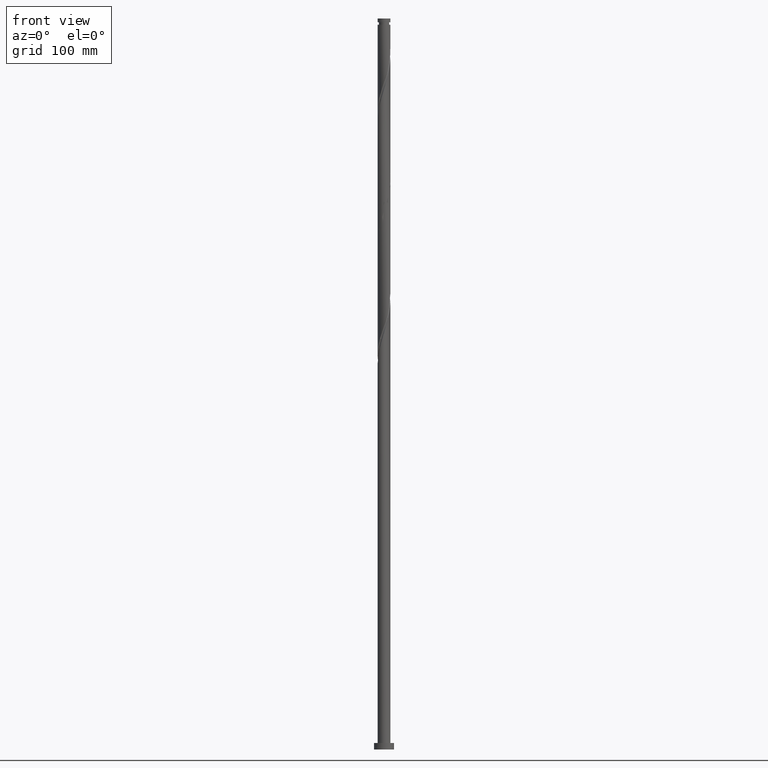
[diagram: clean part render]
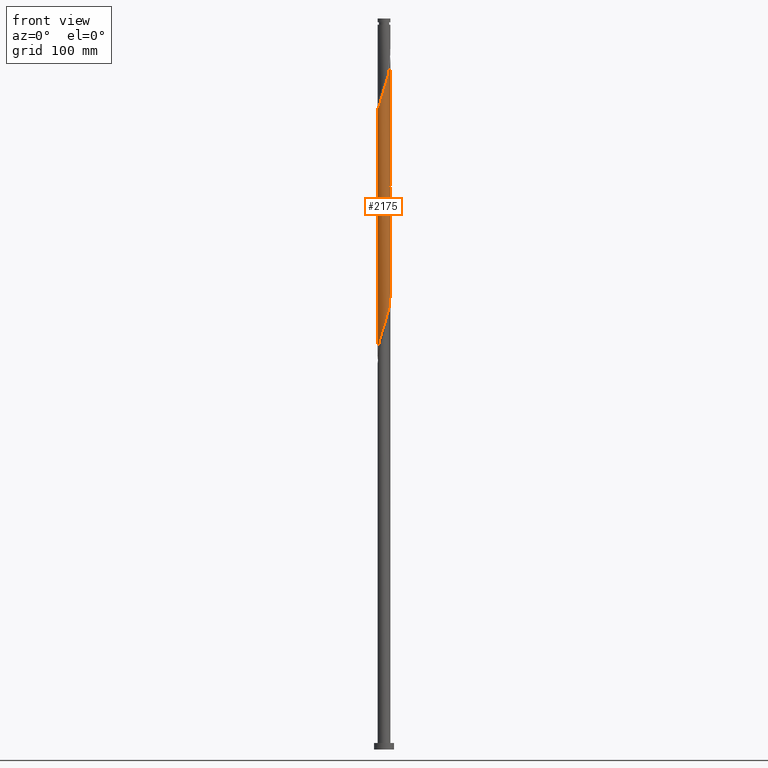
[diagram: same view with one face highlighted and labeled with its STEP entity id]
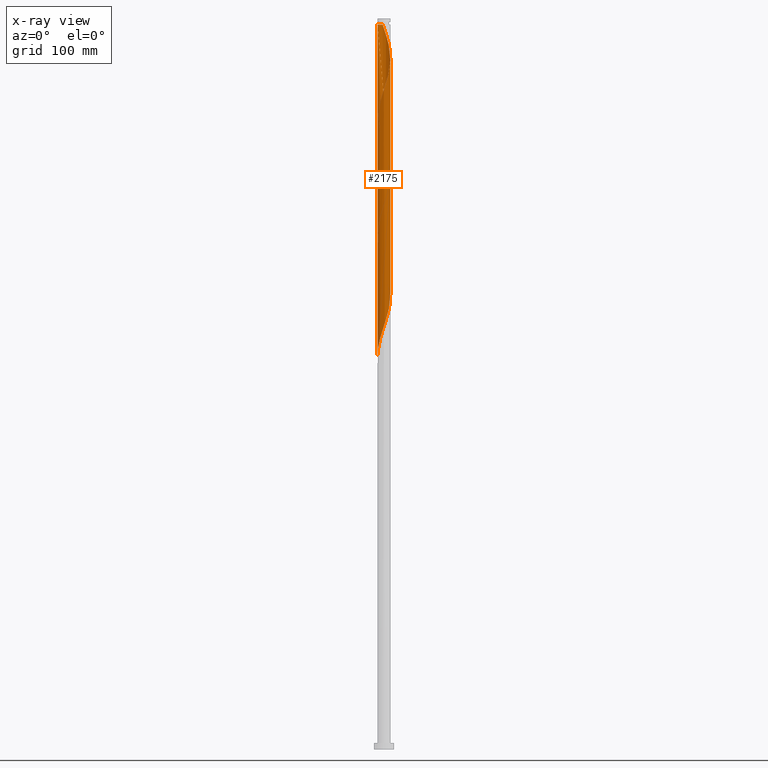
[diagram: x-ray of the same camera — body ghosted, the highlighted face saturated]
A machine part, front view. The second image highlights one B-rep face of the part: STEP entity #2175.
The next image is the same camera in x-ray: the body ghosted, the highlighted face saturated — about 0% of this face is hidden behind the body in this view.
In plain terms, the highlighted cylindrical surface (bore or boss wall) has radius 7 mm, axis along (-0, -0, -1).
Its self-contained STEP definition (entity closure, byte-faithful):
#1 = CARTESIAN_POINT ( 'NONE',  ( 6.719125500927756178, -2.046898846357009472, 749.3262179877327753 ) ) ;
#34 = CARTESIAN_POINT ( 'NONE',  ( 7.000000000000000888, -6.389488974404510009E-15, 630.7711326446619751 ) ) ;
#40 = CARTESIAN_POINT ( 'NONE',  ( 3.633712082764798623, -6.011038087053210077, 608.9753407947505366 ) ) ;
#42 = CARTESIAN_POINT ( 'NONE',  ( 5.312758059196993621, 4.557916388486895620, 645.8174460579085689 ) ) ;
#67 = CARTESIAN_POINT ( 'NONE',  ( -0.3348164892539708948, 7.016006007904984187, 531.7823583386102655 ) ) ;
#77 = CARTESIAN_POINT ( 'NONE',  ( -6.964393863783802097, -0.9130501051561867865, 566.8700776368558536 ) ) ;
#91 = CARTESIAN_POINT ( 'NONE',  ( -6.883510678862316823, 1.397756458909656496, 559.8525337772067587 ) ) ;
#103 = CARTESIAN_POINT ( 'NONE',  ( 1.392982411949279742, 6.859999999999999432, 526.5192004438733875 ) ) ;
#114 = CARTESIAN_POINT ( 'NONE',  ( 5.690437779000085072, 4.117688704572481484, 510.7297267596628672 ) ) ;
#134 = CARTESIAN_POINT ( 'NONE',  ( 6.841759682355785799, -1.479974475756600460, 751.0806039526454470 ) ) ;
#140 = CARTESIAN_POINT ( 'NONE',  ( -6.999999999999999112, 3.791892989483050402E-15, 430.7711326446622593 ) ) ;
#146 = CARTESIAN_POINT ( 'NONE',  ( 1.392982411949278410, -6.860000000000007425, 726.5192004438735012 ) ) ;
#158 = CARTESIAN_POINT ( 'NONE',  ( 5.722650359351619365, 4.031286750482150794, 768.6244636017680705 ) ) ;
#165 = CARTESIAN_POINT ( 'NONE',  ( 7.000000000000000888, 8.572527594031474176E-16, 800.0000000000000000 ) ) ;
#171 = CARTESIAN_POINT ( 'NONE',  ( -2.039907649032629333, 6.696176280790268720, 670.3788495666801737 ) ) ;
#183 = CARTESIAN_POINT ( 'NONE',  ( -1.485046663019564450, -6.865207847770506966, 717.7472706193120757 ) ) ;
#211 = CARTESIAN_POINT ( 'NONE',  ( 4.573537337246518675, -5.330966010888388062, 612.4841127245751977 ) ) ;
#213 = VERTEX_POINT ( 'NONE', #1155 ) ;
#241 = CARTESIAN_POINT ( 'NONE',  ( -4.103624710005660425, 5.671002048970798626, 544.0630600929963521 ) ) ;
#251 = CARTESIAN_POINT ( 'NONE',  ( 6.883510678862316823, -1.397756458909657828, 493.1858671105400731 ) ) ;
#264 = CARTESIAN_POINT ( 'NONE',  ( -5.690437779000082408, -4.117688704572485037, 577.3963934263293822 ) ) ;
#270 = CARTESIAN_POINT ( 'NONE',  ( -4.981072876368360269, -4.918222544813072084, 705.4665688649258755 ) ) ;
#278 = CARTESIAN_POINT ( 'NONE',  ( -6.308128858367871850, 3.034387962378322978, 554.5893758824697670 ) ) ;
#291 = CARTESIAN_POINT ( 'NONE',  ( -1.485046663019558455, 6.865207847770501637, 535.2911302684346992 ) ) ;
#308 = DIRECTION ( 'NONE',  ( -0.000000000000000000, -0.000000000000000000, -1.000000000000000000 ) ) ;
#315 = CARTESIAN_POINT ( 'NONE',  ( -3.544945141351492968, -6.036005628294963010, 452.8349899175576070 ) ) ;
#323 = CARTESIAN_POINT ( 'NONE',  ( 5.690437779000087737, -4.117688704572491254, 742.3086741280837941 ) ) ;
#334 = CARTESIAN_POINT ( 'NONE',  ( -3.633712082764799955, 6.011038087053209189, 675.6420074614171654 ) ) ;
#339 = CARTESIAN_POINT ( 'NONE',  ( -6.290576909859328048, -3.124913522896254570, 440.5542881631716909 ) ) ;
#345 = CARTESIAN_POINT ( 'NONE',  ( 5.312758059196996285, -4.557916388486905390, 740.5542881631715773 ) ) ;
#351 = CARTESIAN_POINT ( 'NONE',  ( 5.388608415490181436, -4.505479078737753440, 482.6595513210664876 ) ) ;
#358 = CARTESIAN_POINT ( 'NONE',  ( 0.9099315761367687827, 6.940606927837753126, 786.1683232508909214 ) ) ;
#360 = CARTESIAN_POINT ( 'NONE',  ( 7.000000000000000888, -6.389488974404510009E-15, 630.7711326446619751 ) ) ;
#371 = CARTESIAN_POINT ( 'NONE',  ( 5.388608415490194758, 4.505479078737750775, 770.3788495666802874 ) ) ;
#390 = CARTESIAN_POINT ( 'NONE',  ( 4.045102827478140206, 5.742263099124208736, 651.0806039526453333 ) ) ;
#396 = CARTESIAN_POINT ( 'NONE',  ( 7.000000000000000888, 8.572527594031474176E-16, 793.1858671105404710 ) ) ;
#409 = CARTESIAN_POINT ( 'NONE',  ( -0.9099315761367652300, 6.940606927837743356, 666.8700776368557399 ) ) ;
#416 = CARTESIAN_POINT ( 'NONE',  ( -6.559565413522707722, 2.511681502530102250, 556.3437618473819839 ) ) ;
#427 = CARTESIAN_POINT ( 'NONE',  ( -4.490090583436019855, -5.370203585762760135, 582.6595513210663739 ) ) ;
#437 = LINE ( 'NONE', #1957, #2016 ) ;
#438 = CARTESIAN_POINT ( 'NONE',  ( -4.981072876368353164, 4.918222544813068531, 547.5718320228208995 ) ) ;
#439 = VERTEX_POINT ( 'NONE', #1730 ) ;
#445 = CARTESIAN_POINT ( 'NONE',  ( -5.722650359351619365, -4.031286750482149017, 701.9577969351015554 ) ) ;
#450 = CARTESIAN_POINT ( 'NONE',  ( 6.841759682355776029, 1.479974475756594465, 501.9577969351014417 ) ) ;
#461 = CARTESIAN_POINT ( 'NONE',  ( 6.719125500927749961, 2.046898846356997481, 503.7121829000137154 ) ) ;
#465 = VERTEX_POINT ( 'NONE', #564 ) ;
#467 = CARTESIAN_POINT ( 'NONE',  ( -6.056692303213043083, -3.557094422226545039, 700.2034109701889975 ) ) ;
#472 = CARTESIAN_POINT ( 'NONE',  ( -6.719125500927749961, -2.046898846357001478, 437.0455162333471435 ) ) ;
#485 = DIRECTION ( 'NONE',  ( -1.000000000000000000, 0.000000000000000000, 0.000000000000000000 ) ) ;
#491 = CARTESIAN_POINT ( 'NONE',  ( 2.503102836793194452, -6.537161171979625429, 730.0279723736979349 ) ) ;
#497 = CARTESIAN_POINT ( 'NONE',  ( 1.485046663019557345, -6.865207847770501637, 468.6244636017680705 ) ) ;
#500 = VECTOR ( 'NONE', #744, 1000.000000000000000 ) ;
#505 = CARTESIAN_POINT ( 'NONE',  ( 4.490090583436023408, -5.370203585762769016, 737.0455162333472572 ) ) ;
#511 = CARTESIAN_POINT ( 'NONE',  ( 6.308128858367872738, -3.034387962378322090, 487.9227092158031951 ) ) ;
#517 = CARTESIAN_POINT ( 'NONE',  ( 6.290576909859333377, -3.124913522896261231, 745.8174460579082279 ) ) ;
#523 = CARTESIAN_POINT ( 'NONE',  ( -6.992042790319738188, -0.3336729211934418293, 431.7823583386100950 ) ) ;
#528 = CARTESIAN_POINT ( 'NONE',  ( -1.485046663019558455, 6.865207847770501637, 668.6244636017679568 ) ) ;
#540 = CARTESIAN_POINT ( 'NONE',  ( 1.961418218361537402, -6.744574186493523804, 728.2735864087856044 ) ) ;
#550 = CARTESIAN_POINT ( 'NONE',  ( 6.964393863783802097, 0.9130501051561858983, 633.5367443035224824 ) ) ;
#557 = CARTESIAN_POINT ( 'NONE',  ( 6.951601197858996883, -0.8217303608394794789, 628.2735864087854907 ) ) ;
#564 = CARTESIAN_POINT ( 'NONE',  ( -6.999999999999999112, 9.703663162062922752E-16, 697.4377993113289449 ) ) ;
#567 = CIRCLE ( 'NONE', #1837, 6.999999999999916511 ) ;
#579 = CARTESIAN_POINT ( 'NONE',  ( 3.044787455224846617, 6.329748157465715508, 654.5893758824699944 ) ) ;
#586 = CARTESIAN_POINT ( 'NONE',  ( -5.388608415490185877, 4.505479078737749887, 549.3262179877330027 ) ) ;
#588 = CARTESIAN_POINT ( 'NONE',  ( 7.000000000000001776, 0.1669313397161781565, 631.2774556631022733 ) ) ;
#594 = CARTESIAN_POINT ( 'NONE',  ( 6.290576909859328048, 3.124913522896254126, 507.2209548298383197 ) ) ;
#608 = CARTESIAN_POINT ( 'NONE',  ( -5.312758059196990956, -4.557916388486895620, 579.1507793912418265 ) ) ;
#614 = CARTESIAN_POINT ( 'NONE',  ( -7.000000000000009770, 6.867207776229107436E-16, 688.9339349097512013 ) ) ;
#618 = CARTESIAN_POINT ( 'NONE',  ( -6.719125500927749961, -2.046898846357001478, 570.3788495666804010 ) ) ;
#629 = CARTESIAN_POINT ( 'NONE',  ( -4.935078339393901281, -4.998144072401310645, 580.9051653561541571 ) ) ;
#642 = CARTESIAN_POINT ( 'NONE',  ( 2.039907649032628889, -6.696176280790268720, 470.3788495666805147 ) ) ;
#654 = CYLINDRICAL_SURFACE ( 'NONE', #2058, 7.000000000000000888 ) ;
#658 = EDGE_CURVE ( 'NONE', #827, #1094, #1900, .T. ) ;
#661 = CARTESIAN_POINT ( 'NONE',  ( 6.504851205393546998, -2.585906184626632243, 747.5718320228210132 ) ) ;
#675 = CARTESIAN_POINT ( 'NONE',  ( 7.019691716855685826, 0.2457042627692980485, 756.3437618473820976 ) ) ;
#688 = CARTESIAN_POINT ( 'NONE',  ( 2.039907649032638659, 6.696176280790275825, 782.6595513210663739 ) ) ;
#693 = CARTESIAN_POINT ( 'NONE',  ( -5.990507344429706116, -3.621301113734367583, 442.3086741280838510 ) ) ;
#699 = CARTESIAN_POINT ( 'NONE',  ( 3.114240358905257189, 6.269091400431627825, 779.1507793912419402 ) ) ;
#711 = CARTESIAN_POINT ( 'NONE',  ( -7.000000000000006217, 0.4122904922740154854, 696.1872721971436704 ) ) ;
#719 = CARTESIAN_POINT ( 'NONE',  ( 5.722650359351610483, -4.031286750482149017, 617.7472706193121894 ) ) ;
#730 = CARTESIAN_POINT ( 'NONE',  ( 6.504851205393541669, 2.585906184626626025, 638.7999021982594741 ) ) ;
#736 = CARTESIAN_POINT ( 'NONE',  ( 3.114240358905251416, -6.269091400431621608, 607.2209548298383197 ) ) ;
#744 = DIRECTION ( 'NONE',  ( -0.000000000000000000, -0.000000000000000000, -1.000000000000000000 ) ) ;
#762 = EDGE_CURVE ( 'NONE', #2056, #465, #437, .T. ) ;
#763 = CARTESIAN_POINT ( 'NONE',  ( 4.935078339393901281, 4.998144072401310645, 514.2384986894874146 ) ) ;
#764 = ORIENTED_EDGE ( 'NONE', *, *, #658, .T. ) ;
#773 = CARTESIAN_POINT ( 'NONE',  ( -2.503102836793193564, -6.537161171979614771, 589.6770951807154688 ) ) ;
#786 = CARTESIAN_POINT ( 'NONE',  ( 3.044787455224846617, 6.329748157465715508, 521.2560425491366232 ) ) ;
#792 = CARTESIAN_POINT ( 'NONE',  ( -6.559565413522717492, -2.511681502530103582, 696.6946390403646774 ) ) ;
#796 = CARTESIAN_POINT ( 'NONE',  ( -7.019691716855676944, 0.2457042627693032666, 563.3613057070311925 ) ) ;
#808 = CARTESIAN_POINT ( 'NONE',  ( -6.504851205393539892, -2.585906184626627358, 572.1332355315926179 ) ) ;
#817 = VECTOR ( 'NONE', #1774, 1000.000000000000000 ) ;
#822 = CARTESIAN_POINT ( 'NONE',  ( 5.722650359351610483, -4.031286750482149017, 484.4139372859787045 ) ) ;
#827 = VERTEX_POINT ( 'NONE', #396 ) ;
#829 = CARTESIAN_POINT ( 'NONE',  ( 6.559565413522717492, 2.511681502530100030, 763.3613057070313062 ) ) ;
#834 = CARTESIAN_POINT ( 'NONE',  ( 2.594768635045698879, -6.527144713810037580, 472.1332355315925611 ) ) ;
#842 = CARTESIAN_POINT ( 'NONE',  ( 4.045102827478140206, -5.742263099124220282, 735.2911302684345856 ) ) ;
#851 = ORIENTED_EDGE ( 'NONE', *, *, #2031, .F. ) ;
#853 = CARTESIAN_POINT ( 'NONE',  ( -0.2448650581415179883, 6.995715910705744278, 789.6770951807155825 ) ) ;
#859 = FACE_OUTER_BOUND ( 'NONE', #1658, .T. ) ;
#865 = CARTESIAN_POINT ( 'NONE',  ( 1.485046663019565116, 6.865207847770508742, 784.4139372859785908 ) ) ;
#877 = CARTESIAN_POINT ( 'NONE',  ( 6.964393863783810978, -0.9130501051561902282, 752.8349899175574365 ) ) ;
#894 = CARTESIAN_POINT ( 'NONE',  ( 6.308128858367872738, -3.034387962378322090, 621.2560425491366232 ) ) ;
#898 = CARTESIAN_POINT ( 'NONE',  ( 6.841759682355776029, 1.479974475756594465, 635.2911302684346992 ) ) ;
#905 = CARTESIAN_POINT ( 'NONE',  ( 4.103624710005657761, -5.671002048970799514, 610.7297267596628672 ) ) ;
#917 = CARTESIAN_POINT ( 'NONE',  ( 5.690437779000085072, 4.117688704572481484, 644.0630600929962384 ) ) ;
#922 = CARTESIAN_POINT ( 'NONE',  ( 6.883510678862316823, -1.397756458909657828, 626.5192004438733875 ) ) ;
#934 = CARTESIAN_POINT ( 'NONE',  ( -3.114240358905251416, 6.269091400431621608, 540.5542881631716909 ) ) ;
#944 = CARTESIAN_POINT ( 'NONE',  ( 6.721538046192512716, -1.954718980719881927, 491.4314811456277425 ) ) ;
#956 = CARTESIAN_POINT ( 'NONE',  ( -0.2448650581415242888, -6.995715910705736285, 596.6946390403645637 ) ) ;
#963 = CARTESIAN_POINT ( 'NONE',  ( -4.573537337246526668, -5.330966010888391615, 707.2209548298380923 ) ) ;
#967 = CARTESIAN_POINT ( 'NONE',  ( -2.039907649032629333, 6.696176280790268720, 537.0455162333469161 ) ) ;
#979 = CARTESIAN_POINT ( 'NONE',  ( 6.992042790319738188, 0.3336729211934395534, 498.4490250052768374 ) ) ;
#1005 = CARTESIAN_POINT ( 'NONE',  ( -4.490090583436019855, -5.370203585762760135, 449.3262179877330027 ) ) ;
#1009 = ORIENTED_EDGE ( 'NONE', *, *, #1901, .T. ) ;
#1011 = CARTESIAN_POINT ( 'NONE',  ( 5.990507344429709669, -3.621301113734377797, 744.0630600929962384 ) ) ;
#1016 = CARTESIAN_POINT ( 'NONE',  ( 0.000000000000000000, 0.000000000000000000, 800.0000000000000000 ) ) ;
#1021 = CARTESIAN_POINT ( 'NONE',  ( 6.992042790319748846, -0.3336729211934429951, 754.5893758824698807 ) ) ;
#1032 = CARTESIAN_POINT ( 'NONE',  ( -3.114240358905251416, 6.269091400431621608, 673.8876214965048348 ) ) ;
#1046 = CARTESIAN_POINT ( 'NONE',  ( -6.559565413522707722, 2.511681502530102250, 689.6770951807156962 ) ) ;
#1057 = CARTESIAN_POINT ( 'NONE',  ( -0.9099315761367683386, -6.940606927837753126, 719.5016565842244063 ) ) ;
#1094 = VERTEX_POINT ( 'NONE', #360 ) ;
#1096 = CARTESIAN_POINT ( 'NONE',  ( 6.992042790319738188, 0.3336729211934395534, 631.7823583386100381 ) ) ;
#1103 = CARTESIAN_POINT ( 'NONE',  ( -6.951601197858996883, 0.8217303608394801451, 561.6069197421188619 ) ) ;
#1114 = CARTESIAN_POINT ( 'NONE',  ( 6.951601197858996883, -0.8217303608394794789, 494.9402530754522900 ) ) ;
#1127 = CARTESIAN_POINT ( 'NONE',  ( 0.8245466055370179737, 6.975425813506483941, 528.2735864087858317 ) ) ;
#1139 = CARTESIAN_POINT ( 'NONE',  ( 5.990507344429706116, 3.621301113734365806, 508.9753407947505934 ) ) ;
#1154 = CARTESIAN_POINT ( 'NONE',  ( 6.964393863783802097, 0.9130501051561858983, 500.2034109701891111 ) ) ;
#1155 = CARTESIAN_POINT ( 'NONE',  ( -1.392982411949347687, 6.859999999999929265, 793.1858671105404710 ) ) ;
#1158 = VERTEX_POINT ( 'NONE', #1256 ) ;
#1161 = CARTESIAN_POINT ( 'NONE',  ( -3.114240358905256745, -6.269091400431627825, 712.4841127245751977 ) ) ;
#1177 = CARTESIAN_POINT ( 'NONE',  ( -5.388608415490193870, -4.505479078737756105, 703.7121829000134312 ) ) ;
#1189 = CARTESIAN_POINT ( 'NONE',  ( -6.999999999999999112, 9.703663162062922752E-16, 697.4377993113290586 ) ) ;
#1197 = CARTESIAN_POINT ( 'NONE',  ( -6.999999999999916511, 0.000000000000000000, 793.1858671105400163 ) ) ;
#1203 = CARTESIAN_POINT ( 'NONE',  ( -6.056692303213035089, 3.557094422226542374, 686.1683232508908077 ) ) ;
#1209 = CARTESIAN_POINT ( 'NONE',  ( -4.935078339393901281, -4.998144072401310645, 447.5718320228207858 ) ) ;
#1216 = CARTESIAN_POINT ( 'NONE',  ( -6.883510678862316823, 1.397756458909656496, 693.1858671105401299 ) ) ;
#1222 =( BOUNDED_CURVE ( )  B_SPLINE_CURVE ( 2, ( #1189, #711, #1712, #1216, #2059, #1046, #1243, #1203, #1930, #1400, #1894, #1906, #1569, #334, #1032, #1736, #171, #528, #409, #1784, #1463, #2132, #2105, #1759, #2122, #579, #2143, #390, #1942, #1633, #42, #917, #1769, #1621, #730, #2115, #898, #550, #1096, #588, #34 ),
 .UNSPECIFIED., .F., .T. ) 
 B_SPLINE_CURVE_WITH_KNOTS ( ( 3, 2, 2, 2, 2, 2, 2, 2, 2, 2, 2, 2, 2, 2, 2, 2, 2, 2, 2, 2, 3 ),
 ( 0.4295295809515952135, 0.4342105263157894912, 0.4407894736842105088, 0.4473684210526315819, 0.4539473684210526550, 0.4605263157894736725, 0.4671052631578947456, 0.4736842105263157632, 0.4802631578947368363, 0.4868421052631579093, 0.4934210526315789269, 0.5000000000000000000, 0.5065789473684210176, 0.5131578947368421462, 0.5197368421052631637, 0.5263157894736841813, 0.5328947368421053099, 0.5394736842105263275, 0.5460526315789473450, 0.5526315789473684736, 0.5545295809515954355 ),
 .UNSPECIFIED. ) 
 CURVE ( )  GEOMETRIC_REPRESENTATION_ITEM ( )  RATIONAL_B_SPLINE_CURVE ( ( 0.9078162034606287456, 0.9068816855934356269, 0.9090909090909575774, 0.9059859027333845294, 0.9090909090909575774, 0.9059859027333845294, 0.9090909090909575774, 0.9059859027333845294, 0.9090909090909575774, 0.9059859027333845294, 0.9090909090909575774, 0.9059859027333845294, 0.9090909090909575774, 0.9059859027333845294, 0.9090909090909575774, 0.9059859027333845294, 0.9090909090909575774, 0.9059859027333845294, 0.9090909090909575774, 0.9059859027333845294, 0.9090909090909575774, 0.9059859027333845294, 0.9090909090909575774, 0.9059859027333845294, 0.9090909090909575774, 0.9059859027333845294, 0.9090909090909575774, 0.9059859027333845294, 0.9090909090909575774, 0.9059859027333845294, 0.9090909090909575774, 0.9059859027333845294, 0.9090909090909575774, 0.9059859027333845294, 0.9090909090909575774, 0.9059859027333845294, 0.9090909090909575774, 0.9059859027333845294, 0.9090909090909575774, 0.9081951262309062578, 0.9078162034606287456 ) ) 
 REPRESENTATION_ITEM ( '' )  );
#1227 = ORIENTED_EDGE ( 'NONE', *, *, #658, .F. ) ;
#1229 = CARTESIAN_POINT ( 'NONE',  ( 3.633712082764808393, 6.011038087053211854, 777.3963934263293822 ) ) ;
#1243 = CARTESIAN_POINT ( 'NONE',  ( -6.308128858367871850, 3.034387962378322978, 687.9227092158032519 ) ) ;
#1252 = ORIENTED_EDGE ( 'NONE', *, *, #1390, .T. ) ;
#1256 = CARTESIAN_POINT ( 'NONE',  ( -7.000000000000009770, 6.867207776229107436E-16, 688.9339349097513150 ) ) ;
#1261 = CARTESIAN_POINT ( 'NONE',  ( -7.000000000000000888, 0.000000000000000000, 800.0000000000000000 ) ) ;
#1290 = CARTESIAN_POINT ( 'NONE',  ( -3.633712082764799955, 6.011038087053209189, 542.3086741280837941 ) ) ;
#1299 = CARTESIAN_POINT ( 'NONE',  ( 7.019691716855676056, -0.2457042627693070413, 496.6946390403646205 ) ) ;
#1308 = CARTESIAN_POINT ( 'NONE',  ( -6.056692303213035089, 3.557094422226542374, 552.8349899175575501 ) ) ;
#1314 = DIRECTION ( 'NONE',  ( -1.000000000000000000, 0.000000000000000000, 0.000000000000000000 ) ) ;
#1319 = CARTESIAN_POINT ( 'NONE',  ( 2.503102836793197117, 6.537161171979613883, 523.0104285140488400 ) ) ;
#1329 = CARTESIAN_POINT ( 'NONE',  ( 0.3348164892539687854, -7.016006007904984187, 598.4490250052770079 ) ) ;
#1343 = CARTESIAN_POINT ( 'NONE',  ( 4.981072876368353164, -4.918222544813068531, 480.9051653561540434 ) ) ;
#1362 = CARTESIAN_POINT ( 'NONE',  ( 6.056692303213043083, 3.557094422226544594, 766.8700776368557399 ) ) ;
#1365 =( BOUNDED_CURVE ( )  B_SPLINE_CURVE ( 2, ( #614, #2185, #1820, #2034, #1831, #792, #2022, #467, #445, #1177, #270, #963, #1498, #2173, #1161, #1855, #1723, #183, #1057, #1583, #2225, #1386, #146, #540, #491, #2214, #1533, #842, #505, #2237, #345, #323, #1011, #517, #661, #1, #134, #877, #1021, #675, #2082, #1558, #1410, #829, #1749, #1362, #158, #371, #1917, #2095, #1882, #1229, #699, #1374, #688, #865, #358, #2047, #853, #1545, #2071 ),
 .UNSPECIFIED., .F., .T. ) 
 B_SPLINE_CURVE_WITH_KNOTS ( ( 3, 2, 2, 2, 2, 2, 2, 2, 2, 2, 2, 2, 2, 2, 2, 2, 2, 2, 2, 2, 2, 2, 2, 2, 2, 2, 2, 2, 2, 2, 3 ),
 ( 0.5545295809515958796, 0.5592105263157894912, 0.5657894736842105088, 0.5723684210526316374, 0.5789473684210526550, 0.5855263157894736725, 0.5921052631578946901, 0.5986842105263157077, 0.6052631578947368363, 0.6118421052631579649, 0.6184210526315789824, 0.6250000000000000000, 0.6315789473684210176, 0.6381578947368420351, 0.6447368421052631637, 0.6513157894736842923, 0.6578947368421053099, 0.6644736842105263275, 0.6710526315789473450, 0.6776315789473683626, 0.6842105263157894912, 0.6907894736842105088, 0.6973684210526316374, 0.7039473684210526550, 0.7105263157894736725, 0.7171052631578946901, 0.7236842105263157077, 0.7302631578947368363, 0.7368421052631579649, 0.7434210526315789824, 0.7500000000000000000 ),
 .UNSPECIFIED. ) 
 CURVE ( )  GEOMETRIC_REPRESENTATION_ITEM ( )  RATIONAL_B_SPLINE_CURVE ( ( 0.9078162034606336306, 0.9068816855934411780, 0.9090909090909626844, 0.9059859027333896364, 0.9090909090909626844, 0.9059859027333896364, 0.9090909090909626844, 0.9059859027333896364, 0.9090909090909626844, 0.9059859027333896364, 0.9090909090909626844, 0.9059859027333896364, 0.9090909090909626844, 0.9059859027333896364, 0.9090909090909626844, 0.9059859027333896364, 0.9090909090909626844, 0.9059859027333896364, 0.9090909090909626844, 0.9059859027333896364, 0.9090909090909626844, 0.9059859027333896364, 0.9090909090909626844, 0.9059859027333896364, 0.9090909090909626844, 0.9059859027333896364, 0.9090909090909626844, 0.9059859027333896364, 0.9090909090909626844, 0.9059859027333896364, 0.9090909090909626844, 0.9059859027333896364, 0.9090909090909626844, 0.9059859027333896364, 0.9090909090909626844, 0.9059859027333896364, 0.9090909090909626844, 0.9059859027333896364, 0.9090909090909626844, 0.9059859027333896364, 0.9090909090909626844, 0.9059859027333896364, 0.9090909090909626844, 0.9059859027333896364, 0.9090909090909626844, 0.9059859027333896364, 0.9090909090909626844, 0.9059859027333896364, 0.9090909090909626844, 0.9059859027333896364, 0.9090909090909626844, 0.9059859027333896364, 0.9090909090909626844, 0.9059859027333896364, 0.9090909090909626844, 0.9059859027333896364, 0.9090909090909626844, 0.9059859027333896364, 0.9090909090909626844, 0.9059859027333896364, 0.9090909090909626844 ) ) 
 REPRESENTATION_ITEM ( '' )  );
#1374 = CARTESIAN_POINT ( 'NONE',  ( 2.594768635045704652, 6.527144713810042020, 780.9051653561539297 ) ) ;
#1380 = CARTESIAN_POINT ( 'NONE',  ( -1.961418218361540511, -6.744574186493514922, 458.0981478122944850 ) ) ;
#1386 = CARTESIAN_POINT ( 'NONE',  ( 0.8245466055370156422, -6.975425813506491046, 724.7648144789610569 ) ) ;
#1390 = EDGE_CURVE ( 'NONE', #2056, #213, #567, .T. ) ;
#1393 = CARTESIAN_POINT ( 'NONE',  ( -6.841759682355776029, -1.479974475756592911, 435.2911302684348698 ) ) ;
#1400 = CARTESIAN_POINT ( 'NONE',  ( -5.388608415490185877, 4.505479078737749887, 682.6595513210661466 ) ) ;
#1410 = CARTESIAN_POINT ( 'NONE',  ( 6.721538046192520710, 1.954718980719881483, 761.6069197421189756 ) ) ;
#1429 = ORIENTED_EDGE ( 'NONE', *, *, #1659, .F. ) ;
#1439 =( BOUNDED_CURVE ( )  B_SPLINE_CURVE ( 2, ( #2113, #2121, #557, #922, #1756, #1592, #894, #1938, #719, #1604, #1948, #211, #905, #40, #736, #1618, #1450, #2130, #1639, #1329, #956, #2006, #2140, #2179, #773, #1988, #1836, #1976, #427, #629, #608, #264, #1804, #1849, #808, #618, #1480, #77, #1469, #796, #1103, #91, #2157, #416, #278, #1308, #1997, #586, #438, #1680, #241, #1290, #934, #2015, #967, #291, #1656, #67, #1813, #1127, #103, #1669, #1319, #786, #1825, #1494, #2168, #763, #2148, #114, #1139, #594, #1502, #461, #450, #1154, #979, #1299, #1114, #251, #944, #1647, #511, #1564, #822, #351, #1343, #1875, #2205, #1527, #1888, #834, #642, #497, #1743, #1550, #2065, #1862, #2040, #1380, #2219, #1729, #315, #1693, #1005, #1209, #1899, #1706, #693, #339, #2027, #472, #1393, #2077, #523, #1539, #140 ),
 .UNSPECIFIED., .F., .T. ) 
 B_SPLINE_CURVE_WITH_KNOTS ( ( 3, 2, 2, 2, 2, 2, 2, 2, 2, 2, 2, 2, 2, 2, 2, 2, 2, 2, 2, 2, 2, 2, 2, 2, 2, 2, 2, 2, 2, 2, 2, 2, 2, 2, 2, 2, 2, 2, 2, 2, 2, 2, 2, 2, 2, 2, 2, 2, 2, 2, 2, 2, 2, 2, 2, 2, 2, 2, 3 ),
 ( 0.5545295809515954355, 0.5592105263157894912, 0.5657894736842105088, 0.5723684210526315264, 0.5789473684210526550, 0.5855263157894736725, 0.5921052631578946901, 0.5986842105263158187, 0.6052631578947368363, 0.6118421052631578538, 0.6184210526315789824, 0.6250000000000000000, 0.6315789473684210176, 0.6381578947368421462, 0.6447368421052631637, 0.6513157894736841813, 0.6578947368421053099, 0.6644736842105263275, 0.6710526315789473450, 0.6776315789473684736, 0.6842105263157894912, 0.6907894736842105088, 0.6973684210526315264, 0.7039473684210526550, 0.7105263157894736725, 0.7171052631578946901, 0.7236842105263158187, 0.7302631578947368363, 0.7368421052631578538, 0.7434210526315789824, 0.7500000000000000000, 0.7565789473684210176, 0.7631578947368421462, 0.7697368421052631637, 0.7763157894736841813, 0.7828947368421053099, 0.7894736842105263275, 0.7960526315789473450, 0.8026315789473684736, 0.8092105263157894912, 0.8157894736842105088, 0.8223684210526315264, 0.8289473684210526550, 0.8355263157894736725, 0.8421052631578946901, 0.8486842105263158187, 0.8552631578947368363, 0.8618421052631578538, 0.8684210526315789824, 0.8750000000000000000, 0.8815789473684210176, 0.8881578947368421462, 0.8947368421052631637, 0.9013157894736840703, 0.9078947368421053099, 0.9144736842105263275, 0.9210526315789473450, 0.9276315789473683626, 0.9295295809515955465 ),
 .UNSPECIFIED. ) 
 CURVE ( )  GEOMETRIC_REPRESENTATION_ITEM ( )  RATIONAL_B_SPLINE_CURVE ( ( 0.9078162034606287456, 0.9068816855934358490, 0.9090909090909575774, 0.9059859027333845294, 0.9090909090909575774, 0.9059859027333845294, 0.9090909090909575774, 0.9059859027333845294, 0.9090909090909575774, 0.9059859027333845294, 0.9090909090909575774, 0.9059859027333845294, 0.9090909090909575774, 0.9059859027333845294, 0.9090909090909575774, 0.9059859027333845294, 0.9090909090909575774, 0.9059859027333845294, 0.9090909090909575774, 0.9059859027333845294, 0.9090909090909575774, 0.9059859027333845294, 0.9090909090909575774, 0.9059859027333845294, 0.9090909090909575774, 0.9059859027333845294, 0.9090909090909575774, 0.9059859027333845294, 0.9090909090909575774, 0.9059859027333845294, 0.9090909090909575774, 0.9059859027333845294, 0.9090909090909575774, 0.9059859027333845294, 0.9090909090909575774, 0.9059859027333845294, 0.9090909090909575774, 0.9059859027333845294, 0.9090909090909575774, 0.9059859027333845294, 0.9090909090909575774, 0.9059859027333845294, 0.9090909090909575774, 0.9059859027333845294, 0.9090909090909575774, 0.9059859027333845294, 0.9090909090909575774, 0.9059859027333845294, 0.9090909090909575774, 0.9059859027333845294, 0.9090909090909575774, 0.9059859027333845294, 0.9090909090909575774, 0.9059859027333845294, 0.9090909090909575774, 0.9059859027333845294, 0.9090909090909575774, 0.9059859027333845294, 0.9090909090909575774, 0.9059859027333845294, 0.9090909090909575774, 0.9059859027333845294, 0.9090909090909575774, 0.9059859027333845294, 0.9090909090909575774, 0.9059859027333845294, 0.9090909090909575774, 0.9059859027333845294, 0.9090909090909575774, 0.9059859027333845294, 0.9090909090909575774, 0.9059859027333845294, 0.9090909090909575774, 0.9059859027333845294, 0.9090909090909575774, 0.9059859027333845294, 0.9090909090909575774, 0.9059859027333845294, 0.9090909090909575774, 0.9059859027333845294, 0.9090909090909575774, 0.9059859027333845294, 0.9090909090909575774, 0.9059859027333845294, 0.9090909090909575774, 0.9059859027333845294, 0.9090909090909575774, 0.9059859027333845294, 0.9090909090909575774, 0.9059859027333845294, 0.9090909090909575774, 0.9059859027333845294, 0.9090909090909575774, 0.9059859027333845294, 0.9090909090909575774, 0.9059859027333845294, 0.9090909090909575774, 0.9059859027333845294, 0.9090909090909575774, 0.9059859027333845294, 0.9090909090909575774, 0.9059859027333845294, 0.9090909090909575774, 0.9059859027333845294, 0.9090909090909575774, 0.9059859027333845294, 0.9090909090909575774, 0.9059859027333845294, 0.9090909090909575774, 0.9059859027333845294, 0.9090909090909575774, 0.9059859027333845294, 0.9090909090909575774, 0.9059859027333845294, 0.9090909090909575774, 0.9081951262309062578, 0.9078162034606287456 ) ) 
 REPRESENTATION_ITEM ( '' )  );
#1450 = CARTESIAN_POINT ( 'NONE',  ( 2.039907649032628889, -6.696176280790268720, 603.7121829000137723 ) ) ;
#1459 = DIRECTION ( 'NONE',  ( -0.000000000000000000, -0.000000000000000000, -1.000000000000000000 ) ) ;
#1463 = CARTESIAN_POINT ( 'NONE',  ( 0.2448650581415234284, 6.995715910705735396, 663.3613057070311925 ) ) ;
#1469 = CARTESIAN_POINT ( 'NONE',  ( -6.992042790319738188, -0.3336729211934418293, 565.1156916719435230 ) ) ;
#1480 = CARTESIAN_POINT ( 'NONE',  ( -6.841759682355776029, -1.479974475756592911, 568.6244636017680705 ) ) ;
#1494 = CARTESIAN_POINT ( 'NONE',  ( 4.045102827478140206, 5.742263099124208736, 517.7472706193119620 ) ) ;
#1498 = CARTESIAN_POINT ( 'NONE',  ( -4.103624710005667531, -5.671002048970803067, 708.9753407947505366 ) ) ;
#1502 = CARTESIAN_POINT ( 'NONE',  ( 6.504851205393541669, 2.585906184626626025, 505.4665688649261028 ) ) ;
#1527 = CARTESIAN_POINT ( 'NONE',  ( 3.633712082764798623, -6.011038087053210077, 475.6420074614172222 ) ) ;
#1533 = CARTESIAN_POINT ( 'NONE',  ( 3.544945141351496076, -6.036005628294971004, 733.5367443035228234 ) ) ;
#1539 = CARTESIAN_POINT ( 'NONE',  ( -6.999999999999999112, -0.1669313397161710788, 431.2774556631023870 ) ) ;
#1545 = CARTESIAN_POINT ( 'NONE',  ( -0.8245466055370147540, 6.975425813506491046, 791.4314811456277994 ) ) ;
#1550 = CARTESIAN_POINT ( 'NONE',  ( 0.3348164892539687854, -7.016006007904984187, 465.1156916719434662 ) ) ;
#1558 = CARTESIAN_POINT ( 'NONE',  ( 6.883510678862323928, 1.397756458909656052, 759.8525337772066450 ) ) ;
#1564 = CARTESIAN_POINT ( 'NONE',  ( 6.056692303213035089, -3.557094422226543706, 486.1683232508909782 ) ) ;
#1569 = CARTESIAN_POINT ( 'NONE',  ( -4.103624710005660425, 5.671002048970798626, 677.3963934263296096 ) ) ;
#1583 = CARTESIAN_POINT ( 'NONE',  ( -0.3348164892539748361, -7.016006007904994846, 721.2560425491363958 ) ) ;
#1592 = CARTESIAN_POINT ( 'NONE',  ( 6.559565413522707722, -2.511681502530106691, 623.0104285140486127 ) ) ;
#1604 = CARTESIAN_POINT ( 'NONE',  ( 5.388608415490181436, -4.505479078737753440, 615.9928846543995178 ) ) ;
#1618 = CARTESIAN_POINT ( 'NONE',  ( 2.594768635045698879, -6.527144713810037580, 605.4665688649261028 ) ) ;
#1621 = CARTESIAN_POINT ( 'NONE',  ( 6.290576909859328048, 3.124913522896254126, 640.5542881631714636 ) ) ;
#1633 = CARTESIAN_POINT ( 'NONE',  ( 4.935078339393901281, 4.998144072401310645, 647.5718320228208995 ) ) ;
#1639 = CARTESIAN_POINT ( 'NONE',  ( 0.9099315761367645639, -6.940606927837743356, 600.2034109701892248 ) ) ;
#1647 = CARTESIAN_POINT ( 'NONE',  ( 6.559565413522707722, -2.511681502530106691, 489.6770951807155825 ) ) ;
#1656 = CARTESIAN_POINT ( 'NONE',  ( -0.9099315761367652300, 6.940606927837743356, 533.5367443035225961 ) ) ;
#1658 = EDGE_LOOP ( 'NONE', ( #1805, #1252, #1429, #1009, #851, #1227, #764, #1853 ) ) ;
#1659 = EDGE_CURVE ( 'NONE', #1158, #213, #1365, .T. ) ;
#1663 = EDGE_CURVE ( 'NONE', #465, #1094, #1222, .T. ) ;
#1669 = CARTESIAN_POINT ( 'NONE',  ( 1.961418218361540955, 6.744574186493514922, 524.7648144789611706 ) ) ;
#1680 = CARTESIAN_POINT ( 'NONE',  ( -4.573537337246520451, 5.330966010888385398, 545.8174460579083416 ) ) ;
#1686 = CARTESIAN_POINT ( 'NONE',  ( 0.000000000000000000, 0.000000000000000000, 793.1858671105400163 ) ) ;
#1693 = CARTESIAN_POINT ( 'NONE',  ( -4.045102827478140206, -5.742263099124210513, 451.0806039526453333 ) ) ;
#1706 = CARTESIAN_POINT ( 'NONE',  ( -5.690437779000082408, -4.117688704572485037, 444.0630600929961815 ) ) ;
#1712 = CARTESIAN_POINT ( 'NONE',  ( -6.951601197858996883, 0.8217303608394801451, 694.9402530754521194 ) ) ;
#1723 = CARTESIAN_POINT ( 'NONE',  ( -2.039907649032634662, -6.696176280790276714, 715.9928846543998588 ) ) ;
#1729 = CARTESIAN_POINT ( 'NONE',  ( -3.044787455224849282, -6.329748157465715508, 454.5893758824698807 ) ) ;
#1730 = CARTESIAN_POINT ( 'NONE',  ( -6.999999999999999112, 3.791892989483050402E-15, 430.7711326446622593 ) ) ;
#1736 = CARTESIAN_POINT ( 'NONE',  ( -2.594768635045700211, 6.527144713810036691, 672.1332355315926179 ) ) ;
#1743 = CARTESIAN_POINT ( 'NONE',  ( 0.9099315761367645639, -6.940606927837743356, 466.8700776368558536 ) ) ;
#1749 = CARTESIAN_POINT ( 'NONE',  ( 6.308128858367882508, 3.034387962378322534, 765.1156916719437504 ) ) ;
#1756 = CARTESIAN_POINT ( 'NONE',  ( 6.721538046192512716, -1.954718980719881927, 624.7648144789611706 ) ) ;
#1759 = CARTESIAN_POINT ( 'NONE',  ( 1.961418218361540955, 6.744574186493514922, 658.0981478122944281 ) ) ;
#1766 = LINE ( 'NONE', #1261, #500 ) ;
#1769 = CARTESIAN_POINT ( 'NONE',  ( 5.990507344429706116, 3.621301113734365806, 642.3086741280839078 ) ) ;
#1774 = DIRECTION ( 'NONE',  ( -0.000000000000000000, -0.000000000000000000, -1.000000000000000000 ) ) ;
#1784 = CARTESIAN_POINT ( 'NONE',  ( -0.3348164892539708948, 7.016006007904984187, 665.1156916719436367 ) ) ;
#1804 = CARTESIAN_POINT ( 'NONE',  ( -5.990507344429706116, -3.621301113734367583, 575.6420074614172790 ) ) ;
#1805 = ORIENTED_EDGE ( 'NONE', *, *, #762, .F. ) ;
#1813 = CARTESIAN_POINT ( 'NONE',  ( 0.2448650581415234284, 6.995715910705735396, 530.0279723736980486 ) ) ;
#1820 = CARTESIAN_POINT ( 'NONE',  ( -6.951601197859004877, -0.8217303608394794789, 691.4314811456280268 ) ) ;
#1825 = CARTESIAN_POINT ( 'NONE',  ( 3.544945141351493856, 6.036005628294963010, 519.5016565842242926 ) ) ;
#1831 = CARTESIAN_POINT ( 'NONE',  ( -6.721538046192520710, -1.954718980719880150, 694.9402530754525742 ) ) ;
#1836 = CARTESIAN_POINT ( 'NONE',  ( -3.544945141351492968, -6.036005628294963010, 586.1683232508910351 ) ) ;
#1837 = AXIS2_PLACEMENT_3D ( 'NONE', #1686, #308, #1314 ) ;
#1849 = CARTESIAN_POINT ( 'NONE',  ( -6.290576909859328048, -3.124913522896254570, 573.8876214965049485 ) ) ;
#1853 = ORIENTED_EDGE ( 'NONE', *, *, #1663, .F. ) ;
#1855 = CARTESIAN_POINT ( 'NONE',  ( -2.594768635045703764, -6.527144713810042020, 714.2384986894873009 ) ) ;
#1862 = CARTESIAN_POINT ( 'NONE',  ( -0.8245466055370201941, -6.975425813506483941, 461.6069197421189756 ) ) ;
#1875 = CARTESIAN_POINT ( 'NONE',  ( 4.573537337246518675, -5.330966010888388062, 479.1507793912418265 ) ) ;
#1882 = CARTESIAN_POINT ( 'NONE',  ( 4.103624710005671083, 5.671002048970800402, 775.6420074614171654 ) ) ;
#1888 = CARTESIAN_POINT ( 'NONE',  ( 3.114240358905251416, -6.269091400431621608, 473.8876214965050053 ) ) ;
#1894 = CARTESIAN_POINT ( 'NONE',  ( -4.981072876368353164, 4.918222544813068531, 680.9051653561540434 ) ) ;
#1899 = CARTESIAN_POINT ( 'NONE',  ( -5.312758059196990956, -4.557916388486895620, 445.8174460579084553 ) ) ;
#1900 = LINE ( 'NONE', #165, #817 ) ;
#1901 = EDGE_CURVE ( 'NONE', #1158, #439, #1766, .T. ) ;
#1906 = CARTESIAN_POINT ( 'NONE',  ( -4.573537337246520451, 5.330966010888385398, 679.1507793912418265 ) ) ;
#1917 = CARTESIAN_POINT ( 'NONE',  ( 4.981072876368362046, 4.918222544813072084, 772.1332355315928453 ) ) ;
#1930 = CARTESIAN_POINT ( 'NONE',  ( -5.722650359351611371, 4.031286750482146353, 684.4139372859787045 ) ) ;
#1938 = CARTESIAN_POINT ( 'NONE',  ( 6.056692303213035089, -3.557094422226543706, 619.5016565842245200 ) ) ;
#1942 = CARTESIAN_POINT ( 'NONE',  ( 4.490090583436021632, 5.370203585762757470, 649.3262179877328890 ) ) ;
#1948 = CARTESIAN_POINT ( 'NONE',  ( 4.981072876368353164, -4.918222544813068531, 614.2384986894874146 ) ) ;
#1957 = CARTESIAN_POINT ( 'NONE',  ( -7.000000000000000888, 0.000000000000000000, 800.0000000000000000 ) ) ;
#1976 = CARTESIAN_POINT ( 'NONE',  ( -4.045102827478140206, -5.742263099124210513, 584.4139372859785908 ) ) ;
#1988 = CARTESIAN_POINT ( 'NONE',  ( -3.044787455224849282, -6.329748157465715508, 587.9227092158033656 ) ) ;
#1997 = CARTESIAN_POINT ( 'NONE',  ( -5.722650359351611371, 4.031286750482146353, 551.0806039526454470 ) ) ;
#2006 = CARTESIAN_POINT ( 'NONE',  ( -0.8245466055370201941, -6.975425813506483941, 594.9402530754523468 ) ) ;
#2015 = CARTESIAN_POINT ( 'NONE',  ( -2.594768635045700211, 6.527144713810036691, 538.7999021982592467 ) ) ;
#2016 = VECTOR ( 'NONE', #1459, 1000.000000000000000 ) ;
#2022 = CARTESIAN_POINT ( 'NONE',  ( -6.308128858367879843, -3.034387962378324755, 698.4490250052772353 ) ) ;
#2027 = CARTESIAN_POINT ( 'NONE',  ( -6.504851205393539892, -2.585906184626627358, 438.7999021982593035 ) ) ;
#2031 = EDGE_CURVE ( 'NONE', #1094, #439, #1439, .T. ) ;
#2034 = CARTESIAN_POINT ( 'NONE',  ( -6.883510678862323928, -1.397756458909656718, 693.1858671105400163 ) ) ;
#2040 = CARTESIAN_POINT ( 'NONE',  ( -1.392982411949279076, -6.859999999999999432, 459.8525337772067019 ) ) ;
#2047 = CARTESIAN_POINT ( 'NONE',  ( 0.3348164892539727266, 7.016006007904994846, 787.9227092158033656 ) ) ;
#2056 = VERTEX_POINT ( 'NONE', #1197 ) ;
#2058 = AXIS2_PLACEMENT_3D ( 'NONE', #1016, #2242, #485 ) ;
#2059 = CARTESIAN_POINT ( 'NONE',  ( -6.721538046192512716, 1.954718980719879262, 691.4314811456275720 ) ) ;
#2065 = CARTESIAN_POINT ( 'NONE',  ( -0.2448650581415242888, -6.995715910705736285, 463.3613057070312493 ) ) ;
#2071 = CARTESIAN_POINT ( 'NONE',  ( -1.392982411949347687, 6.859999999999929265, 793.1858671105404710 ) ) ;
#2077 = CARTESIAN_POINT ( 'NONE',  ( -6.964393863783802097, -0.9130501051561867865, 433.5367443035225392 ) ) ;
#2082 = CARTESIAN_POINT ( 'NONE',  ( 6.951601197859004877, 0.8217303608394771475, 758.0981478122944281 ) ) ;
#2095 = CARTESIAN_POINT ( 'NONE',  ( 4.573537337246526668, 5.330966010888388951, 773.8876214965048348 ) ) ;
#2105 = CARTESIAN_POINT ( 'NONE',  ( 1.392982411949279742, 6.859999999999999432, 659.8525337772066450 ) ) ;
#2113 = CARTESIAN_POINT ( 'NONE',  ( 7.000000000000000888, -6.389488974404510009E-15, 630.7711326446619751 ) ) ;
#2115 = CARTESIAN_POINT ( 'NONE',  ( 6.719125500927749961, 2.046898846356997481, 637.0455162333469161 ) ) ;
#2121 = CARTESIAN_POINT ( 'NONE',  ( 7.000000000000001776, -0.4122904922740339151, 629.5206055304768142 ) ) ;
#2122 = CARTESIAN_POINT ( 'NONE',  ( 2.503102836793197117, 6.537161171979613883, 656.3437618473824386 ) ) ;
#2130 = CARTESIAN_POINT ( 'NONE',  ( 1.485046663019557345, -6.865207847770501637, 601.9577969351013280 ) ) ;
#2132 = CARTESIAN_POINT ( 'NONE',  ( 0.8245466055370179737, 6.975425813506483941, 661.6069197421190893 ) ) ;
#2140 = CARTESIAN_POINT ( 'NONE',  ( -1.392982411949279076, -6.859999999999999432, 593.1858671105399026 ) ) ;
#2143 = CARTESIAN_POINT ( 'NONE',  ( 3.544945141351493856, 6.036005628294963010, 652.8349899175576638 ) ) ;
#2148 = CARTESIAN_POINT ( 'NONE',  ( 5.312758059196993621, 4.557916388486895620, 512.4841127245750840 ) ) ;
#2157 = CARTESIAN_POINT ( 'NONE',  ( -6.721538046192512716, 1.954718980719879262, 558.0981478122942008 ) ) ;
#2168 = CARTESIAN_POINT ( 'NONE',  ( 4.490090583436021632, 5.370203585762757470, 515.9928846543997452 ) ) ;
#2173 = CARTESIAN_POINT ( 'NONE',  ( -3.633712082764805285, -6.011038087053212742, 710.7297267596627535 ) ) ;
#2175 = ADVANCED_FACE ( 'NONE', ( #859 ), #654, .T. ) ;
#2179 = CARTESIAN_POINT ( 'NONE',  ( -1.961418218361540511, -6.744574186493514922, 591.4314811456277994 ) ) ;
#2185 = CARTESIAN_POINT ( 'NONE',  ( -7.000000000000005329, -0.4122904922740761036, 690.1844620239368169 ) ) ;
#2205 = CARTESIAN_POINT ( 'NONE',  ( 4.103624710005657761, -5.671002048970799514, 477.3963934263294959 ) ) ;
#2214 = CARTESIAN_POINT ( 'NONE',  ( 3.044787455224846617, -6.329748157465723502, 731.7823583386102655 ) ) ;
#2219 = CARTESIAN_POINT ( 'NONE',  ( -2.503102836793193564, -6.537161171979614771, 456.3437618473820407 ) ) ;
#2225 = CARTESIAN_POINT ( 'NONE',  ( 0.2448650581415218463, -6.995715910705744278, 723.0104285140490674 ) ) ;
#2237 = CARTESIAN_POINT ( 'NONE',  ( 4.935078339393903946, -4.998144072401318638, 738.7999021982593604 ) ) ;
#2242 = DIRECTION ( 'NONE',  ( -0.000000000000000000, -0.000000000000000000, -1.000000000000000000 ) ) ;